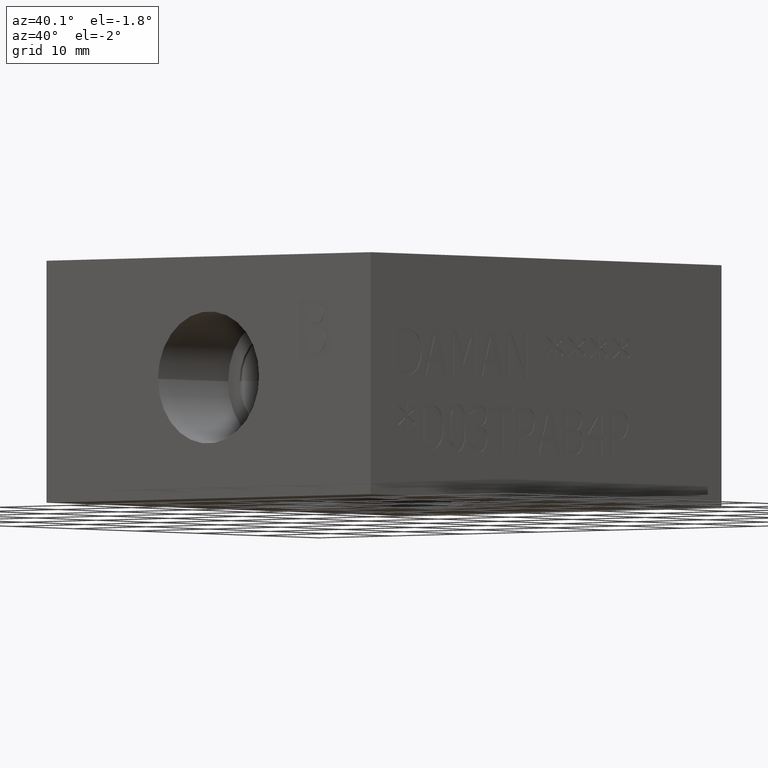
[diagram: clean part render]
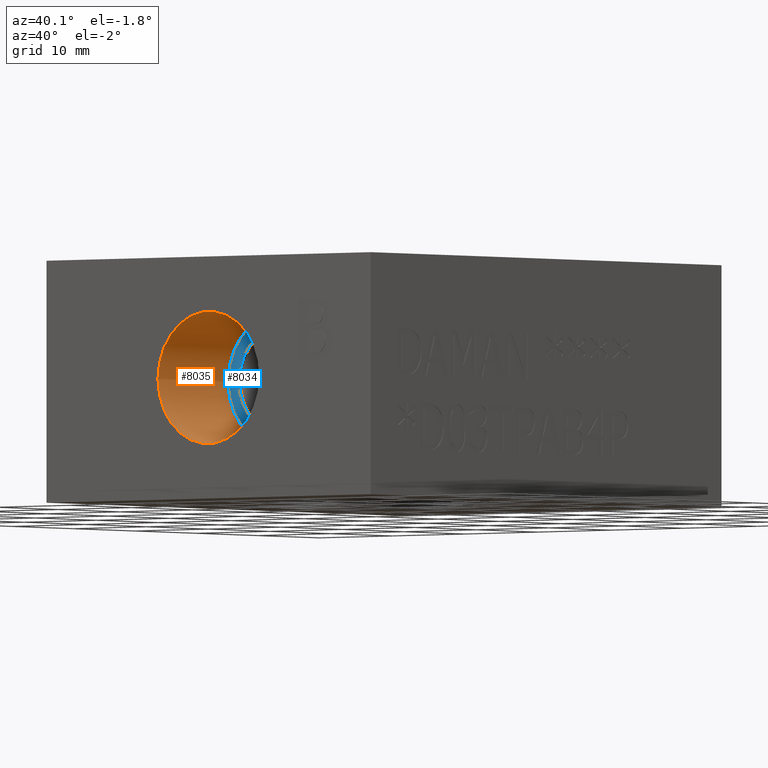
[diagram: same view with the hole feature highlighted: cylindrical wall and planar end face, labeled with their STEP entity ids]
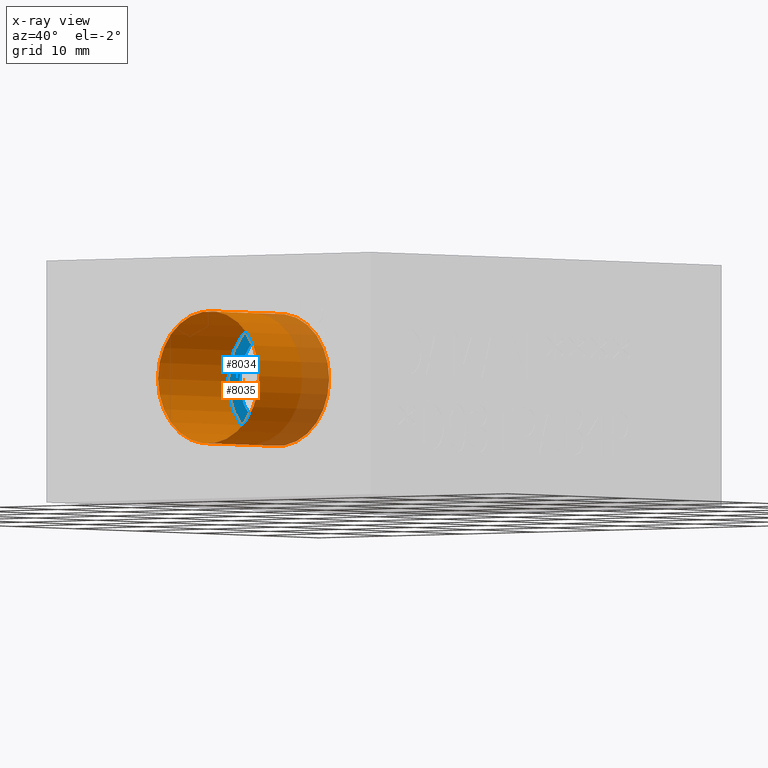
[diagram: x-ray of the same camera — body ghosted, the hole faces saturated]
A machine part, auxiliary view. The highlighted faces form one hole feature of diameter 13.8684 mm: the cylindrical wall (entity #8035, orange) and its adjacent planar end face (entity #8034, blue) — they share a circular edge in the B-rep.
The next image is the same camera in x-ray (body ghosted, the hole faces saturated) — the bore reads through the body.
Wall:
#28=CYLINDRICAL_SURFACE('',#8413,6.9342);
#55=CIRCLE('',#8343,6.9342);
#91=CIRCLE('',#8411,6.9342);
#842=FACE_OUTER_BOUND('',#1307,.T.);
#1307=EDGE_LOOP('',(#7103,#7104,#7105,#7106));
#2168=LINE('',#13455,#3016);
#3016=VECTOR('',#9963,6.9342);
#3879=VERTEX_POINT('',#13242);
#3925=VERTEX_POINT('',#13450);
#4935=EDGE_CURVE('',#3879,#3879,#55,.T.);
#4999=EDGE_CURVE('',#3925,#3925,#91,.T.);
#5001=EDGE_CURVE('',#3879,#3925,#2168,.T.);
#7103=ORIENTED_EDGE('',*,*,#4935,.F.);
#7104=ORIENTED_EDGE('',*,*,#5001,.T.);
#7105=ORIENTED_EDGE('',*,*,#4999,.F.);
#7106=ORIENTED_EDGE('',*,*,#5001,.F.);
#8035=ADVANCED_FACE('',(#842),#28,.F.);
#8343=AXIS2_PLACEMENT_3D('',#13243,#9796,#9797);
#8411=AXIS2_PLACEMENT_3D('',#13451,#9957,#9958);
#8413=AXIS2_PLACEMENT_3D('',#13454,#9961,#9962);
#9796=DIRECTION('center_axis',(0.,1.,0.));
#9797=DIRECTION('ref_axis',(1.,0.,0.));
#9957=DIRECTION('center_axis',(0.,-1.,0.));
#9958=DIRECTION('ref_axis',(1.,0.,0.));
#9961=DIRECTION('center_axis',(0.,-1.,0.));
#9962=DIRECTION('ref_axis',(1.,0.,0.));
#9963=DIRECTION('',(0.,1.,0.));
#13242=CARTESIAN_POINT('',(15.2908,0.,12.7));
#13243=CARTESIAN_POINT('Origin',(22.225,0.,12.7));
#13450=CARTESIAN_POINT('',(15.2908,11.4046,12.7));
#13451=CARTESIAN_POINT('Origin',(22.225,11.4046,12.7));
#13454=CARTESIAN_POINT('Origin',(22.225,5.7023,12.7));
#13455=CARTESIAN_POINT('',(15.2908,5.7023,12.7));
End face:
#91=CIRCLE('',#8411,6.9342);
#92=CIRCLE('',#8412,5.3594);
#158=FACE_BOUND('',#1306,.T.);
#444=PLANE('',#8410);
#841=FACE_OUTER_BOUND('',#1305,.T.);
#1305=EDGE_LOOP('',(#7101));
#1306=EDGE_LOOP('',(#7102));
#3925=VERTEX_POINT('',#13450);
#3926=VERTEX_POINT('',#13452);
#4999=EDGE_CURVE('',#3925,#3925,#91,.T.);
#5000=EDGE_CURVE('',#3926,#3926,#92,.T.);
#7101=ORIENTED_EDGE('',*,*,#4999,.T.);
#7102=ORIENTED_EDGE('',*,*,#5000,.F.);
#8034=ADVANCED_FACE('',(#841,#158),#444,.T.);
#8410=AXIS2_PLACEMENT_3D('',#13449,#9955,#9956);
#8411=AXIS2_PLACEMENT_3D('',#13451,#9957,#9958);
#8412=AXIS2_PLACEMENT_3D('',#13453,#9959,#9960);
#9955=DIRECTION('center_axis',(0.,-1.,0.));
#9956=DIRECTION('ref_axis',(1.,0.,0.));
#9957=DIRECTION('center_axis',(0.,-1.,0.));
#9958=DIRECTION('ref_axis',(1.,0.,0.));
#9959=DIRECTION('center_axis',(0.,-1.,0.));
#9960=DIRECTION('ref_axis',(1.,0.,0.));
#13449=CARTESIAN_POINT('Origin',(22.225,11.4046,12.7));
#13450=CARTESIAN_POINT('',(15.2908,11.4046,12.7));
#13451=CARTESIAN_POINT('Origin',(22.225,11.4046,12.7));
#13452=CARTESIAN_POINT('',(16.8656,11.4046,12.7));
#13453=CARTESIAN_POINT('Origin',(22.225,11.4046,12.7));